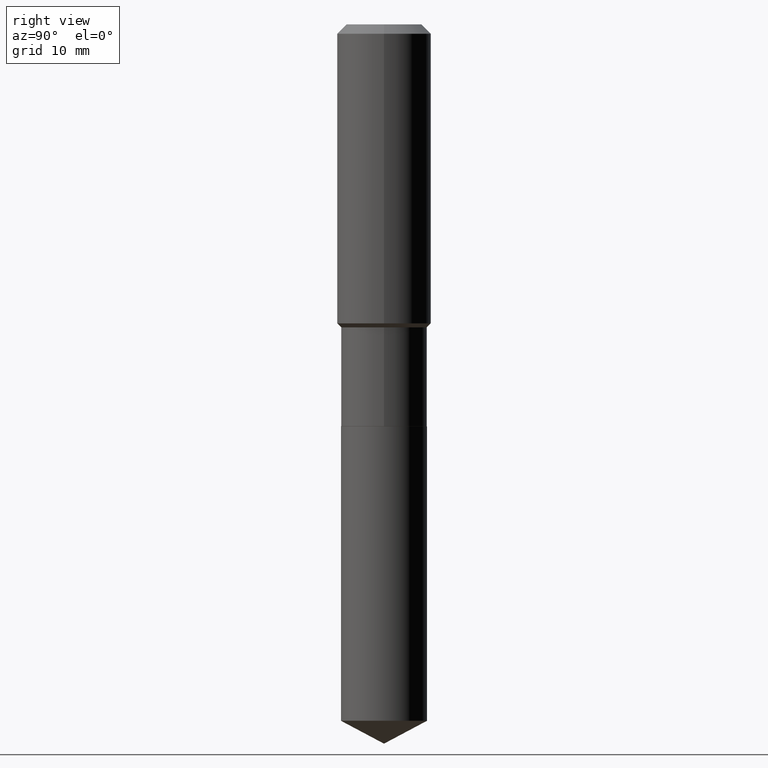
[diagram: clean part render]
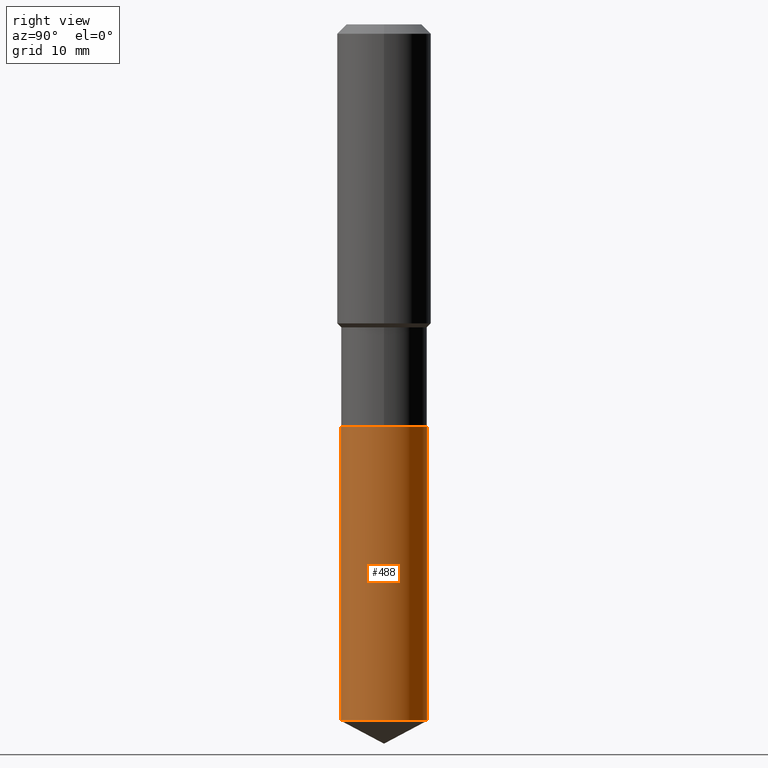
[diagram: same view with one face highlighted and labeled with its STEP entity id]
A machine part, right view. The second image highlights one B-rep face of the part: STEP entity #488.
In plain terms, the highlighted cylindrical surface (partial cylindrical patch) has radius 6.3995 mm, axis along (-0, 0, 1).
Its self-contained STEP definition (entity closure, byte-faithful):
#11 = DIRECTION ( 'NONE',  ( -6.982962677686265922E-15, -1.000000000000000000, 4.337127197720600657E-15 ) ) ;
#18 = VERTEX_POINT ( 'NONE', #71 ) ;
#19 = DIRECTION ( 'NONE',  ( -6.982962677686265922E-15, -1.000000000000000000, 3.252845398290450098E-15 ) ) ;
#21 = ORIENTED_EDGE ( 'NONE', *, *, #323, .T. ) ;
#24 = VERTEX_POINT ( 'NONE', #347 ) ;
#57 = CARTESIAN_POINT ( 'NONE',  ( 1.790212422747629662E-15, 0.2519499999999917361, -2.354300000000001170 ) ) ;
#66 = ORIENTED_EDGE ( 'NONE', *, *, #440, .F. ) ;
#71 = CARTESIAN_POINT ( 'NONE',  ( 1.790212422747671867E-15, 0.2519499999999857409, -4.078635808692893328 ) ) ;
#128 = EDGE_CURVE ( 'NONE', #24, #315, #194, .T. ) ;
#183 = CARTESIAN_POINT ( 'NONE',  ( -1.759357446642997213E-15, -0.2519500000000082229, -2.354299999999999393 ) ) ;
#194 = CIRCLE ( 'NONE', #238, 0.2519500000000000073 ) ;
#201 = CARTESIAN_POINT ( 'NONE',  ( 9.973522068687030357E-29, -1.424141820015458017E-14, -4.078635808692891551 ) ) ;
#209 = DIRECTION ( 'NONE',  ( -2.445089197261036539E-29, 3.492024960428455391E-15, 1.000000000000000000 ) ) ;
#211 = DIRECTION ( 'NONE',  ( -2.445089197261036539E-29, 3.492024960428454996E-15, 1.000000000000000000 ) ) ;
#216 = LINE ( 'NONE', #57, #338 ) ;
#238 = AXIS2_PLACEMENT_3D ( 'NONE', #433, #211, #19 ) ;
#250 = CARTESIAN_POINT ( 'NONE',  ( 1.790212422747672261E-15, 0.2519499999999917361, -2.354300000000001170 ) ) ;
#261 = VERTEX_POINT ( 'NONE', #412 ) ;
#267 = DIRECTION ( 'NONE',  ( -6.982962677686265922E-15, -1.000000000000000000, 3.252845398290450098E-15 ) ) ;
#277 = CIRCLE ( 'NONE', #439, 0.2519500000000000073 ) ;
#294 = EDGE_CURVE ( 'NONE', #261, #18, #277, .T. ) ;
#311 = AXIS2_PLACEMENT_3D ( 'NONE', #328, #402, #267 ) ;
#315 = VERTEX_POINT ( 'NONE', #250 ) ;
#321 = CYLINDRICAL_SURFACE ( 'NONE', #311, 0.2519500000000000073 ) ;
#323 = EDGE_CURVE ( 'NONE', #18, #315, #216, .T. ) ;
#328 = CARTESIAN_POINT ( 'NONE',  ( 5.757367210401668198E-29, -8.219994516038419081E-15, -2.354300000000000281 ) ) ;
#335 = DIRECTION ( 'NONE',  ( -2.445089197261036539E-29, 3.492024960428455391E-15, 1.000000000000000000 ) ) ;
#338 = VECTOR ( 'NONE', #209, 39.37007874015748143 ) ;
#342 = DIRECTION ( 'NONE',  ( -2.445089197261036539E-29, 3.492024960428454996E-15, 1.000000000000000000 ) ) ;
#347 = CARTESIAN_POINT ( 'NONE',  ( -1.759357446642997213E-15, -0.2519500000000082229, -2.354299999999999393 ) ) ;
#366 = FACE_OUTER_BOUND ( 'NONE', #460, .T. ) ;
#401 = ORIENTED_EDGE ( 'NONE', *, *, #294, .T. ) ;
#402 = DIRECTION ( 'NONE',  ( -2.445089197261036539E-29, 3.492024960428454996E-15, 1.000000000000000000 ) ) ;
#406 = LINE ( 'NONE', #183, #474 ) ;
#412 = CARTESIAN_POINT ( 'NONE',  ( -1.759357446642955206E-15, -0.2519500000000142181, -4.078635808692890663 ) ) ;
#433 = CARTESIAN_POINT ( 'NONE',  ( 5.757367210401668198E-29, -8.219994516038419081E-15, -2.354300000000000281 ) ) ;
#439 = AXIS2_PLACEMENT_3D ( 'NONE', #201, #342, #11 ) ;
#440 = EDGE_CURVE ( 'NONE', #261, #24, #406, .T. ) ;
#457 = ORIENTED_EDGE ( 'NONE', *, *, #128, .F. ) ;
#460 = EDGE_LOOP ( 'NONE', ( #401, #21, #457, #66 ) ) ;
#474 = VECTOR ( 'NONE', #335, 39.37007874015748143 ) ;
#488 = ADVANCED_FACE ( 'NONE', ( #366 ), #321, .T. ) ;